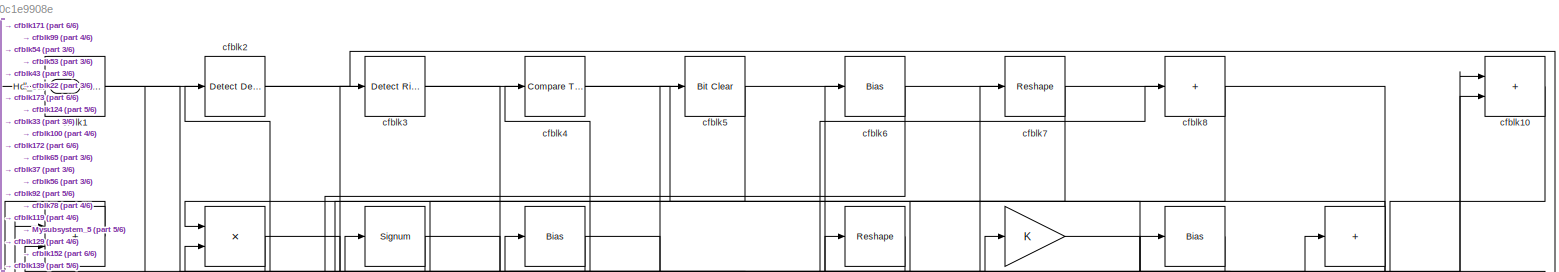
[diagram: root canvas - part 1/6, full width, top band]
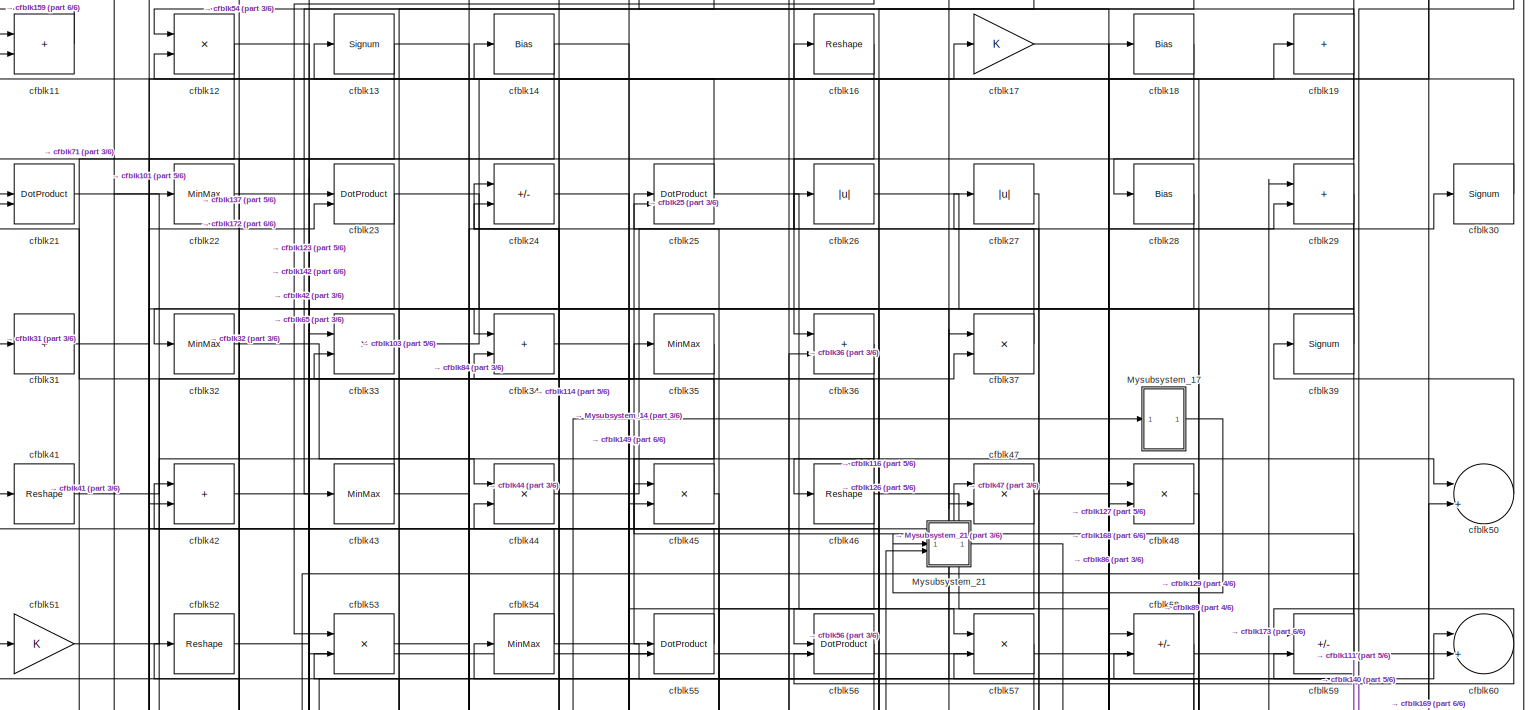
[diagram: root canvas - part 2/6, full width, top band]
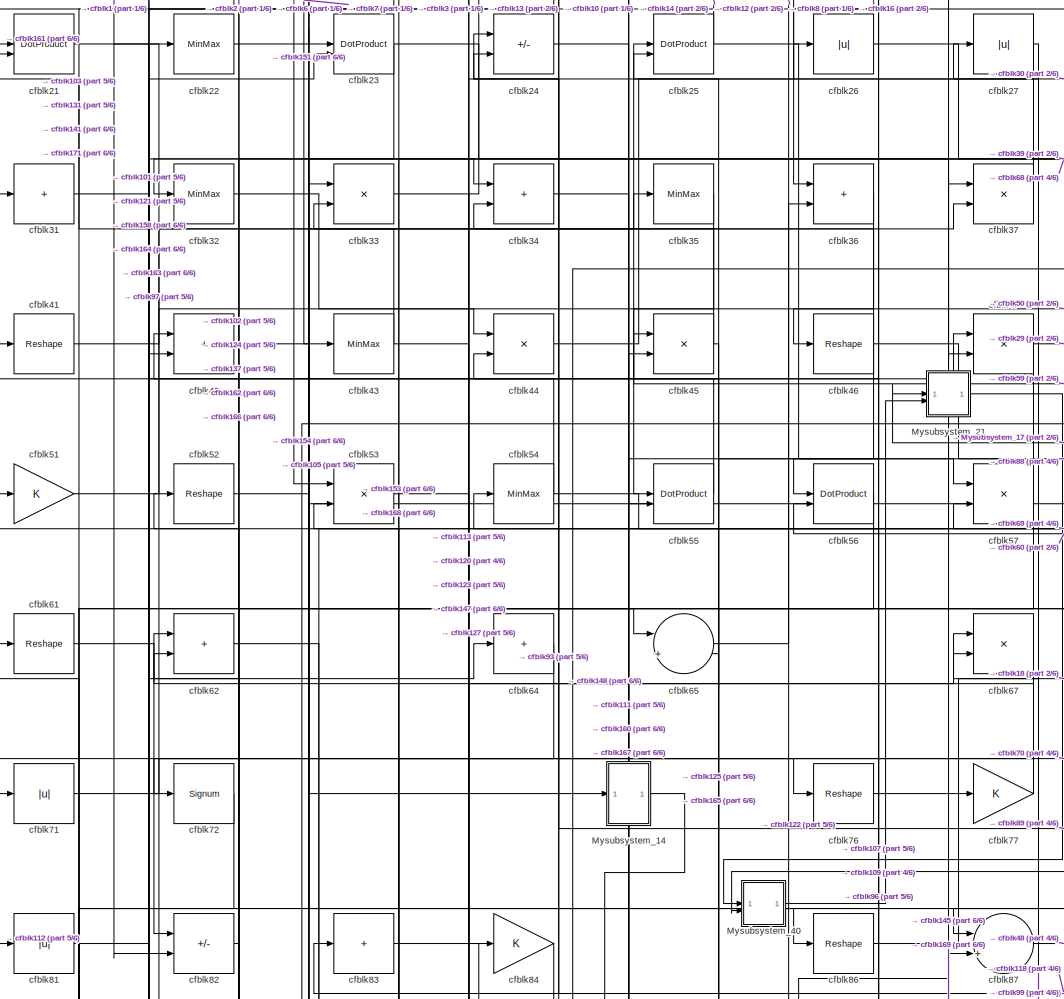
[diagram: root canvas - part 3/6, top center region]
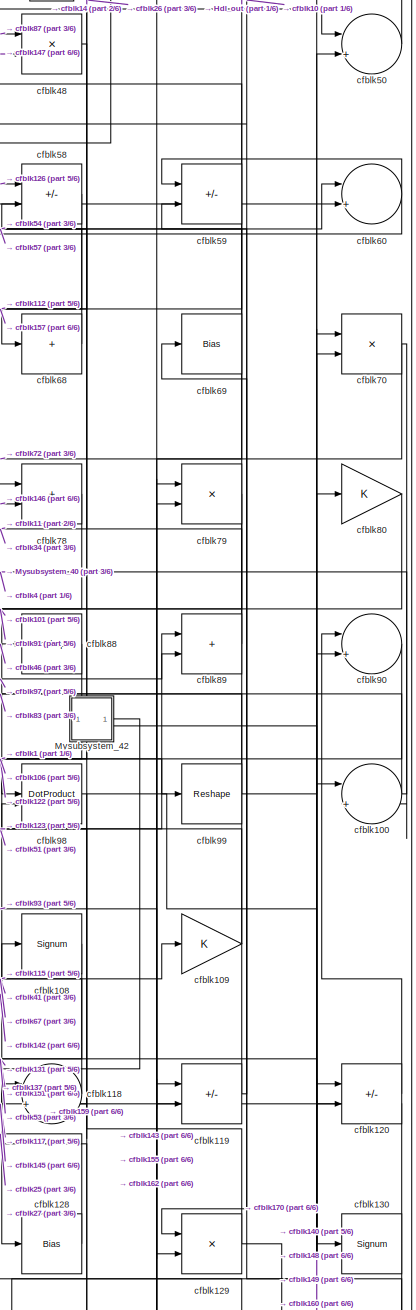
[diagram: root canvas - part 4/6, middle right region]
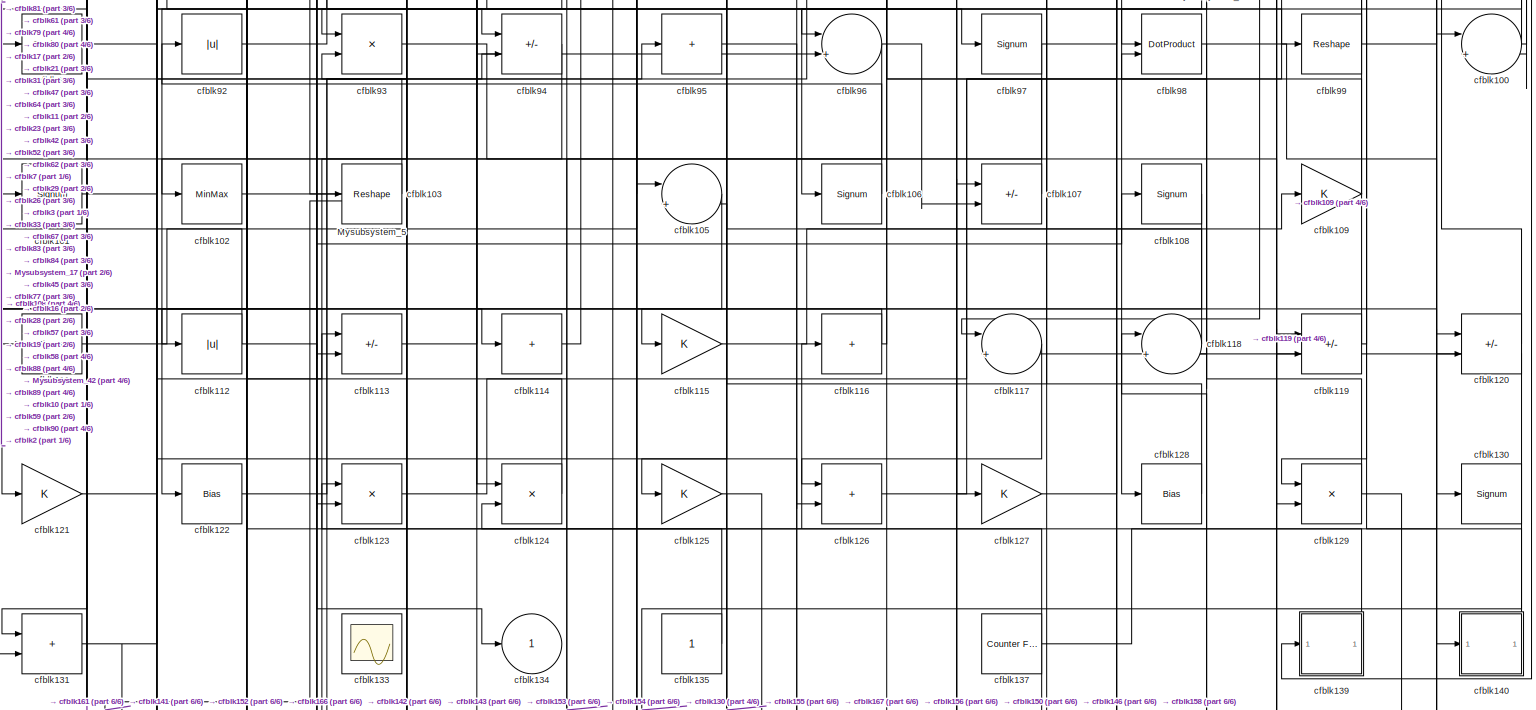
[diagram: root canvas - part 5/6, full width, middle band]
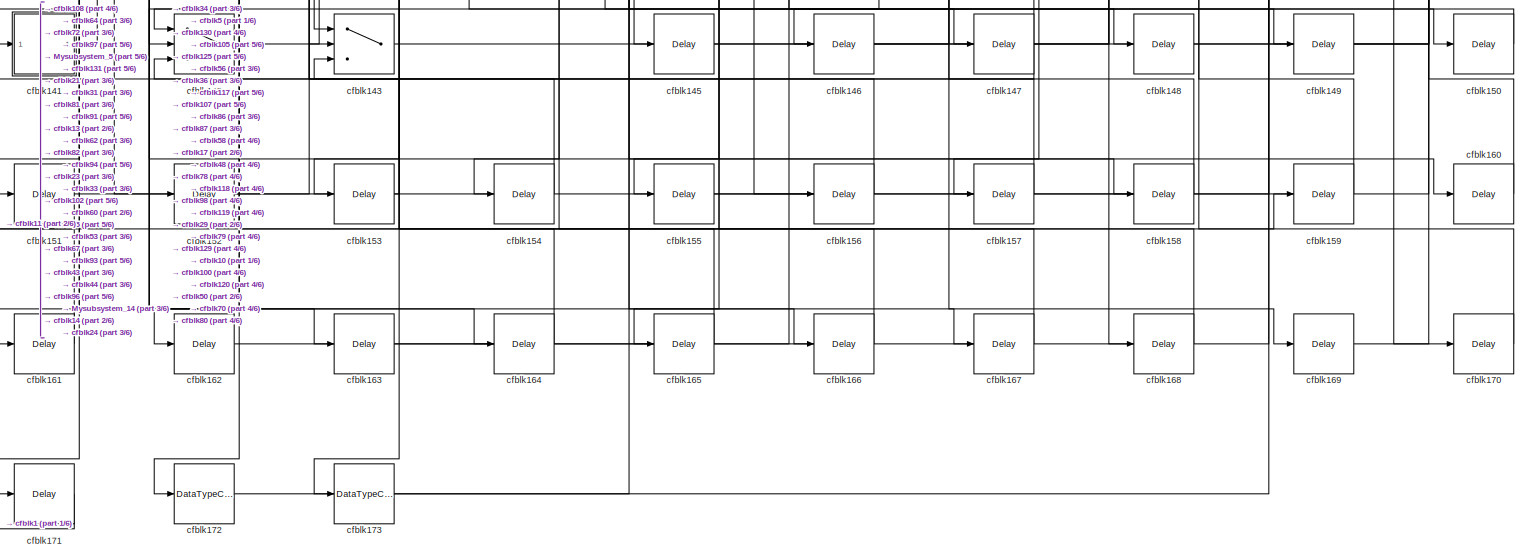
[diagram: root canvas - part 6/6, full width, bottom band]
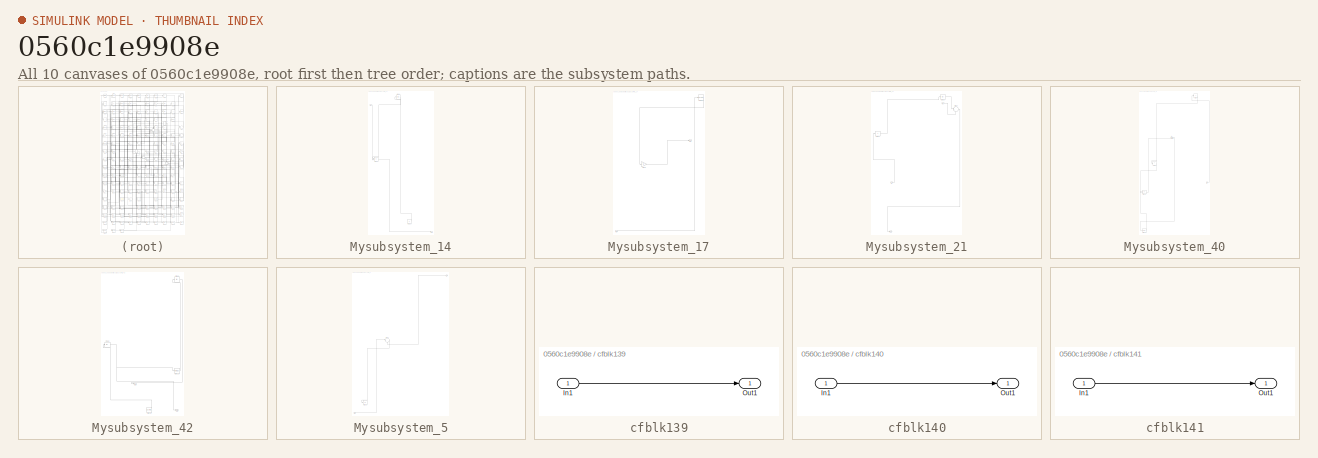
[diagram: thumbnail index - all 10 canvases of the model, root first then tree order]
MODEL slx_0560c1e9908e
KIND model
CONFIG AbsTol = auto
CONFIG EnableMultiTasking = off
CONFIG FixedStep = auto
CONFIG MaxStep = auto
CONFIG MinStep = auto
CONFIG RelTol = 1e-3
CONFIG SampleTimeConstraint = Unconstrained
CONFIG SolverName = VariableStepAuto
CONFIG StartTime = 0.0
CONFIG StopTime = 10.0
BLOCK [Outport] Hdl_out
  OutDataTypeStr = uint8
  Port = 2
BLOCK [SubSystem] Mysubsystem_14
  RTWFcnName = Mysubsystem_14
  RTWFcnNameOpts = User specified
  RTWFileNameOpts = Use function name
  RTWSystemCode = Reusable function
  TreatAsAtomicUnit = on
BLOCK [Inport] Mysubsystem_14/In1
BLOCK [Outport] Mysubsystem_14/Out1
BLOCK [Constant] Mysubsystem_14/cfblk136
  SampleTime = -1
BLOCK [Bias] Mysubsystem_14/cfblk15
  Bias = 0.0
  SaturateOnIntegerOverflow = off
BLOCK [Product] Mysubsystem_14/cfblk73
  Inputs = */
  RndMeth = Zero
  SaturateOnIntegerOverflow = on
BLOCK [SubSystem] Mysubsystem_17
  RTWFcnName = Mysubsystem_17
  RTWFcnNameOpts = User specified
  RTWFileNameOpts = Use function name
  RTWSystemCode = Reusable function
  TreatAsAtomicUnit = on
BLOCK [Inport] Mysubsystem_17/In1
BLOCK [Outport] Mysubsystem_17/Out1
BLOCK [Reshape] Mysubsystem_17/cfblk20
BLOCK [Gain] Mysubsystem_17/cfblk66
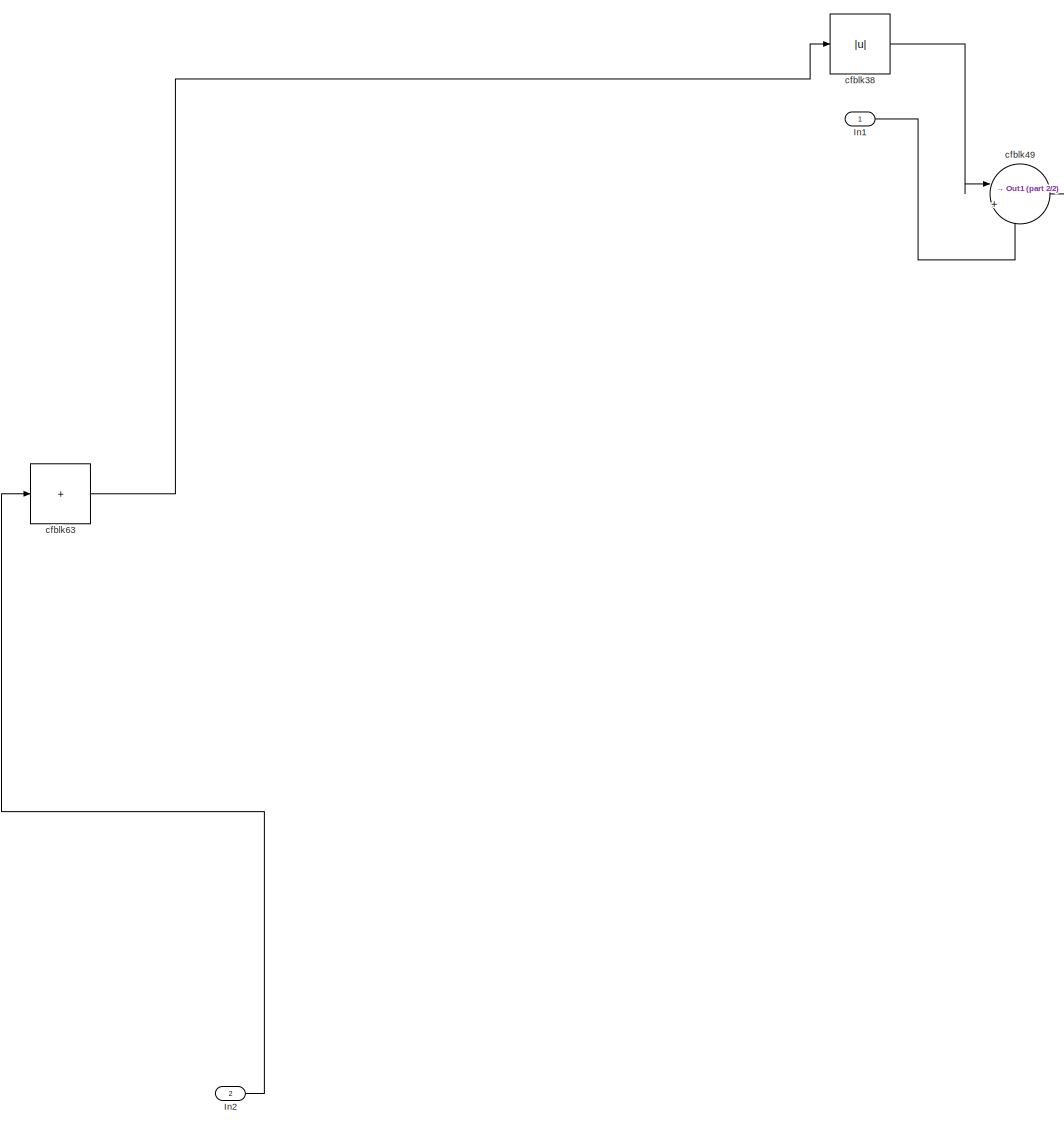
[diagram: Mysubsystem_21 - part 1/2, full width, middle band]
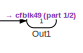
[diagram: Mysubsystem_21 - part 2/2, bottom left region]
BLOCK [SubSystem] Mysubsystem_21
  RTWFcnName = Mysubsystem_21
  RTWFcnNameOpts = User specified
  RTWFileNameOpts = Use function name
  RTWSystemCode = Reusable function
  TreatAsAtomicUnit = on
BLOCK [Inport] Mysubsystem_21/In1
BLOCK [Inport] Mysubsystem_21/In2
  Port = 2
BLOCK [Outport] Mysubsystem_21/Out1
BLOCK [Abs] Mysubsystem_21/cfblk38
  SaturateOnIntegerOverflow = off
BLOCK [Sum] Mysubsystem_21/cfblk49
  Inputs = |++
BLOCK [Sum] Mysubsystem_21/cfblk63
  IconShape = rectangular
  Inputs = +
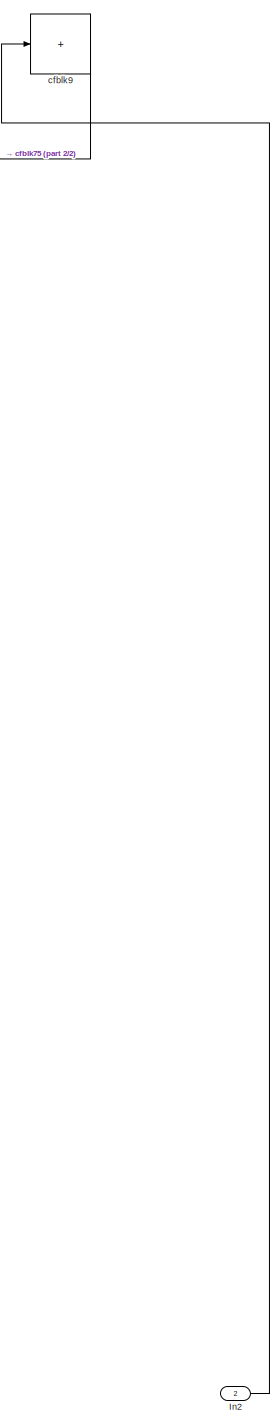
[diagram: Mysubsystem_40 - part 1/2, top right region]
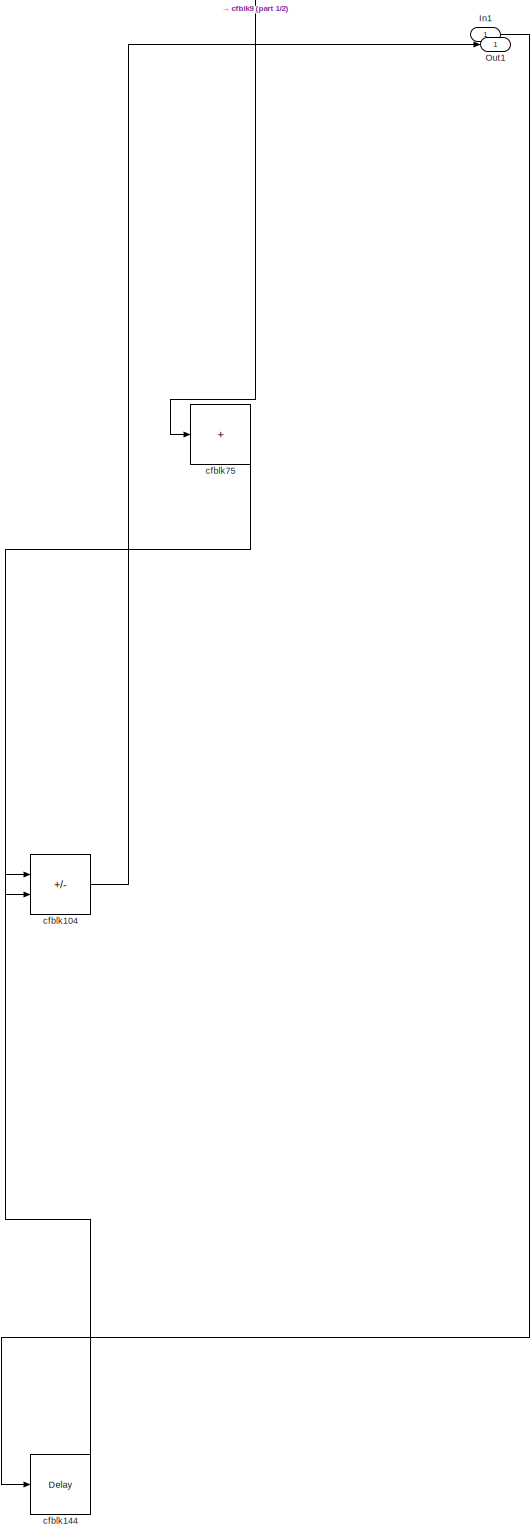
[diagram: Mysubsystem_40 - part 2/2, middle left region]
BLOCK [SubSystem] Mysubsystem_40
  RTWFcnName = Mysubsystem_40
  RTWFcnNameOpts = User specified
  RTWFileNameOpts = Use function name
  RTWSystemCode = Reusable function
  TreatAsAtomicUnit = on
BLOCK [Inport] Mysubsystem_40/In1
BLOCK [Inport] Mysubsystem_40/In2
  Port = 2
BLOCK [Outport] Mysubsystem_40/Out1
BLOCK [Sum] Mysubsystem_40/cfblk104
  IconShape = rectangular
  Inputs = +-
BLOCK [Delay] Mysubsystem_40/cfblk144
  InputPortMap = u0
  SampleTime = 1
BLOCK [Sum] Mysubsystem_40/cfblk75
  IconShape = rectangular
  Inputs = +
BLOCK [Sum] Mysubsystem_40/cfblk9
  IconShape = rectangular
  Inputs = +
BLOCK [SubSystem] Mysubsystem_42
  RTWFcnName = Mysubsystem_42
  RTWFcnNameOpts = User specified
  RTWFileNameOpts = Use function name
  RTWSystemCode = Reusable function
  TreatAsAtomicUnit = on
BLOCK [Outport] Mysubsystem_42/Out1
BLOCK [Outport] Mysubsystem_42/Out2
  Port = 2
BLOCK [MinMax] Mysubsystem_42/cfblk110
BLOCK [Reference] Mysubsystem_42/cfblk138  REF=hdlsllib/Sources/Counter
Limited
  SourceBlock = hdlsllib/Sources/Counter\nLimited
  SourceType = Counter Limited
BLOCK [Abs] Mysubsystem_42/cfblk40
  SaturateOnIntegerOverflow = off
BLOCK [Abs] Mysubsystem_42/cfblk85
  SaturateOnIntegerOverflow = off
BLOCK [SubSystem] Mysubsystem_5
  RTWFcnName = Mysubsystem_5
  RTWFcnNameOpts = User specified
  RTWFileNameOpts = Use function name
  RTWSystemCode = Reusable function
  TreatAsAtomicUnit = on
BLOCK [Inport] Mysubsystem_5/In1
BLOCK [Inport] Mysubsystem_5/In2
  Port = 2
BLOCK [Display] Mysubsystem_5/cfblk132
  Decimation = 1
BLOCK [Sum] Mysubsystem_5/cfblk74
  Inputs = |++
BLOCK [Reference] cfblk1  REF=hdlsllib/Logic and Bit
Operations/Detect Fall
Nonpositive
  SourceBlock = hdlsllib/Logic and Bit\nOperations/Detect Fall\nNonpositive
  SourceType = Detect Fall Nonpositive
BLOCK [Sum] cfblk10
  IconShape = rectangular
  OutDataTypeStr = uint8
BLOCK [Sum] cfblk100
  Inputs = |++
  OutDataTypeStr = uint8
BLOCK [Signum] cfblk101
BLOCK [MinMax] cfblk102
  OutDataTypeStr = uint8
BLOCK [Reshape] cfblk103
BLOCK [Sum] cfblk105
  Inputs = |++
  OutDataTypeStr = uint8
BLOCK [Signum] cfblk106
BLOCK [Sum] cfblk107
  IconShape = rectangular
  Inputs = +-
  OutDataTypeStr = uint8
BLOCK [Signum] cfblk108
BLOCK [Gain] cfblk109
  OutDataTypeStr = uint8
BLOCK [Sum] cfblk11
  IconShape = rectangular
  OutDataTypeStr = uint8
BLOCK [Signum] cfblk111
BLOCK [Abs] cfblk112
  OutDataTypeStr = uint8
  SaturateOnIntegerOverflow = off
BLOCK [Sum] cfblk113
  IconShape = rectangular
  Inputs = +-
  OutDataTypeStr = uint8
BLOCK [Sum] cfblk114
  IconShape = rectangular
  Inputs = +
  OutDataTypeStr = uint8
BLOCK [Gain] cfblk115
  OutDataTypeStr = uint8
BLOCK [Sum] cfblk116
  IconShape = rectangular
  Inputs = +
  OutDataTypeStr = uint8
BLOCK [Sum] cfblk117
  Inputs = |++
  OutDataTypeStr = uint8
BLOCK [Sum] cfblk118
  Inputs = |++
  OutDataTypeStr = uint8
BLOCK [Sum] cfblk119
  IconShape = rectangular
  Inputs = +-
  OutDataTypeStr = uint8
BLOCK [Product] cfblk12
  Inputs = */
  OutDataTypeStr = uint8
  RndMeth = Zero
  SaturateOnIntegerOverflow = on
BLOCK [Sum] cfblk120
  IconShape = rectangular
  Inputs = +-
  OutDataTypeStr = uint8
BLOCK [Gain] cfblk121
  OutDataTypeStr = uint8
BLOCK [Bias] cfblk122
  Bias = 0.0
  SaturateOnIntegerOverflow = off
BLOCK [Product] cfblk123
  Inputs = */
  OutDataTypeStr = uint8
  RndMeth = Zero
  SaturateOnIntegerOverflow = on
BLOCK [Product] cfblk124
  Inputs = */
  OutDataTypeStr = uint8
  RndMeth = Zero
  SaturateOnIntegerOverflow = on
BLOCK [Gain] cfblk125
  OutDataTypeStr = uint8
BLOCK [Sum] cfblk126
  IconShape = rectangular
  OutDataTypeStr = uint8
BLOCK [Gain] cfblk127
  OutDataTypeStr = uint8
BLOCK [Bias] cfblk128
  Bias = 0.0
  SaturateOnIntegerOverflow = off
BLOCK [Product] cfblk129
  Inputs = */
  OutDataTypeStr = uint8
  RndMeth = Zero
  SaturateOnIntegerOverflow = on
BLOCK [Signum] cfblk13
BLOCK [Signum] cfblk130
BLOCK [Sum] cfblk131
  IconShape = rectangular
  OutDataTypeStr = uint8
BLOCK [Scope] cfblk133
  Floating = on
  NumInputPorts = 1
  ScopeSpecificationString = Simulink.scopes.TimeScopeBlockCfg('CurrentConfiguration', extmgr.ConfigurationSet(extmgr.Configuration('Core','General UI',true,'FigureColor',[0.156862745098039 0.156862745098039 0.156862745098039]),extmgr.Configuration('Core','Source UI',true),extmgr.Configuration('Sources','WiredSimulink',true,'DataLoggingVariableName','ScopeData1','DataLoggingSaveFormat','StructureWithTime','DataLoggingLimitDat...<+2713ch>
BLOCK [Outport] cfblk134
  OutDataTypeStr = uint8
  VectorParamsAs1DForOutWhenUnconnected = off
BLOCK [Constant] cfblk135
  OutDataTypeStr = uint8
  SampleTime = -1
BLOCK [Reference] cfblk137  REF=hdlsllib/Sources/Counter
Free-Running
  SourceBlock = hdlsllib/Sources/Counter\nFree-Running
  SourceType = Counter Free-Running
BLOCK [SubSystem] cfblk139
  LibrarySourceBlock = hdlsllib/Ports &\nSubsystems/Subsystem
BLOCK [Inport] cfblk139/In1
BLOCK [Outport] cfblk139/Out1
BLOCK [Bias] cfblk14
  Bias = 0.0
  SaturateOnIntegerOverflow = off
BLOCK [SubSystem] cfblk140
  LibrarySourceBlock = hdlsllib/Ports &\nSubsystems/Subsystem
BLOCK [Inport] cfblk140/In1
BLOCK [Outport] cfblk140/Out1
BLOCK [SubSystem] cfblk141
  LibrarySourceBlock = hdlsllib/Ports &\nSubsystems/Subsystem
BLOCK [Inport] cfblk141/In1
BLOCK [Outport] cfblk141/Out1
BLOCK [Switch] cfblk142
  InputSameDT = off
  OutDataTypeStr = uint8
  SaturateOnIntegerOverflow = off
BLOCK [Switch] cfblk143
  InputSameDT = off
  OutDataTypeStr = uint8
  SaturateOnIntegerOverflow = off
BLOCK [Delay] cfblk145
  InputPortMap = u0
  SampleTime = 1
BLOCK [Delay] cfblk146
  InputPortMap = u0
  SampleTime = 1
BLOCK [Delay] cfblk147
  InputPortMap = u0
  SampleTime = 1
BLOCK [Delay] cfblk148
  InputPortMap = u0
  SampleTime = 1
BLOCK [Delay] cfblk149
  InputPortMap = u0
  SampleTime = 1
BLOCK [Delay] cfblk150
  InputPortMap = u0
  SampleTime = 1
BLOCK [Delay] cfblk151
  InputPortMap = u0
  SampleTime = 1
BLOCK [Delay] cfblk152
  InputPortMap = u0
  SampleTime = 1
BLOCK [Delay] cfblk153
  InputPortMap = u0
  SampleTime = 1
BLOCK [Delay] cfblk154
  InputPortMap = u0
  SampleTime = 1
BLOCK [Delay] cfblk155
  InputPortMap = u0
  SampleTime = 1
BLOCK [Delay] cfblk156
  InputPortMap = u0
  SampleTime = 1
BLOCK [Delay] cfblk157
  InputPortMap = u0
  SampleTime = 1
BLOCK [Delay] cfblk158
  InputPortMap = u0
  SampleTime = 1
BLOCK [Delay] cfblk159
  InputPortMap = u0
  SampleTime = 1
BLOCK [Reshape] cfblk16
BLOCK [Delay] cfblk160
  InputPortMap = u0
  SampleTime = 1
BLOCK [Delay] cfblk161
  InputPortMap = u0
  SampleTime = 1
BLOCK [Delay] cfblk162
  InputPortMap = u0
  SampleTime = 1
BLOCK [Delay] cfblk163
  InputPortMap = u0
  SampleTime = 1
BLOCK [Delay] cfblk164
  InputPortMap = u0
  SampleTime = 1
BLOCK [Delay] cfblk165
  InputPortMap = u0
  SampleTime = 1
BLOCK [Delay] cfblk166
  InputPortMap = u0
  SampleTime = 1
BLOCK [Delay] cfblk167
  InputPortMap = u0
  SampleTime = 1
BLOCK [Delay] cfblk168
  InputPortMap = u0
  SampleTime = 1
BLOCK [Delay] cfblk169
  InputPortMap = u0
  SampleTime = 1
BLOCK [Gain] cfblk17
  OutDataTypeStr = uint8
BLOCK [Delay] cfblk170
  InputPortMap = u0
  SampleTime = 1
BLOCK [Delay] cfblk171
  InputPortMap = u0
  SampleTime = 1
BLOCK [DataTypeConversion] cfblk172
  OutDataTypeStr = uint8
  RndMeth = Floor
  SaturateOnIntegerOverflow = off
BLOCK [DataTypeConversion] cfblk173
  OutDataTypeStr = uint8
  RndMeth = Floor
  SaturateOnIntegerOverflow = off
BLOCK [Bias] cfblk18
  Bias = 0.0
  SaturateOnIntegerOverflow = off
BLOCK [Sum] cfblk19
  IconShape = rectangular
  Inputs = +
  OutDataTypeStr = uint8
BLOCK [Reference] cfblk2  REF=simulink/Logic and Bit
Operations/Detect
Decrease
  LibrarySourceBlock = hdlsllib/Logic and Bit\nOperations/Detect\nDecrease
  SourceBlock = simulink/Logic and Bit\nOperations/Detect\nDecrease
  SourceType = Detect Decrease
BLOCK [DotProduct] cfblk21
  OutDataTypeStr = uint8
BLOCK [MinMax] cfblk22
  OutDataTypeStr = uint8
BLOCK [DotProduct] cfblk23
  OutDataTypeStr = uint8
BLOCK [Sum] cfblk24
  IconShape = rectangular
  Inputs = +-
  OutDataTypeStr = uint8
BLOCK [DotProduct] cfblk25
  OutDataTypeStr = uint8
BLOCK [Abs] cfblk26
  OutDataTypeStr = uint8
  SaturateOnIntegerOverflow = off
BLOCK [Abs] cfblk27
  OutDataTypeStr = uint8
  SaturateOnIntegerOverflow = off
BLOCK [Bias] cfblk28
  Bias = 0.0
  SaturateOnIntegerOverflow = off
BLOCK [Sum] cfblk29
  IconShape = rectangular
  OutDataTypeStr = uint8
BLOCK [Reference] cfblk3  REF=hdlsllib/Logic and Bit
Operations/Detect Rise
Positive
  SourceBlock = hdlsllib/Logic and Bit\nOperations/Detect Rise\nPositive
  SourceType = Detect Rise Positive
BLOCK [Signum] cfblk30
BLOCK [Sum] cfblk31
  IconShape = rectangular
  Inputs = +
  OutDataTypeStr = uint8
BLOCK [MinMax] cfblk32
  OutDataTypeStr = uint8
BLOCK [Product] cfblk33
  Inputs = */
  OutDataTypeStr = uint8
  RndMeth = Zero
  SaturateOnIntegerOverflow = on
BLOCK [Sum] cfblk34
  IconShape = rectangular
  OutDataTypeStr = uint8
BLOCK [MinMax] cfblk35
  OutDataTypeStr = uint8
BLOCK [Sum] cfblk36
  IconShape = rectangular
  OutDataTypeStr = uint8
BLOCK [Product] cfblk37
  Inputs = */
  OutDataTypeStr = uint8
  RndMeth = Zero
  SaturateOnIntegerOverflow = on
BLOCK [Signum] cfblk39
BLOCK [Reference] cfblk4  REF=hdlsllib/Logic and Bit
Operations/Compare
To Zero
  SourceBlock = hdlsllib/Logic and Bit\nOperations/Compare\nTo Zero
  SourceType = Compare To Zero
BLOCK [Reshape] cfblk41
BLOCK [Sum] cfblk42
  IconShape = rectangular
  OutDataTypeStr = uint8
BLOCK [MinMax] cfblk43
  OutDataTypeStr = uint8
BLOCK [Product] cfblk44
  Inputs = */
  OutDataTypeStr = uint8
  RndMeth = Zero
  SaturateOnIntegerOverflow = on
BLOCK [Product] cfblk45
  Inputs = */
  OutDataTypeStr = uint8
  RndMeth = Zero
  SaturateOnIntegerOverflow = on
BLOCK [Reshape] cfblk46
BLOCK [Product] cfblk47
  Inputs = */
  OutDataTypeStr = uint8
  RndMeth = Zero
  SaturateOnIntegerOverflow = on
BLOCK [Product] cfblk48
  Inputs = */
  OutDataTypeStr = uint8
  RndMeth = Zero
  SaturateOnIntegerOverflow = on
BLOCK [Reference] cfblk5  REF=simulink/Logic and Bit
Operations/Bit Clear
  LibrarySourceBlock = hdlsllib/Logic and Bit\nOperations/Bit Clear
  SourceBlock = simulink/Logic and Bit\nOperations/Bit Clear
  SourceType = Bit Clear
BLOCK [Sum] cfblk50
  Inputs = |++
  OutDataTypeStr = uint8
BLOCK [Gain] cfblk51
  OutDataTypeStr = uint8
BLOCK [Reshape] cfblk52
BLOCK [Product] cfblk53
  Inputs = */
  OutDataTypeStr = uint8
  RndMeth = Zero
  SaturateOnIntegerOverflow = on
BLOCK [MinMax] cfblk54
  OutDataTypeStr = uint8
BLOCK [DotProduct] cfblk55
  OutDataTypeStr = uint8
BLOCK [DotProduct] cfblk56
  OutDataTypeStr = uint8
BLOCK [Product] cfblk57
  Inputs = */
  OutDataTypeStr = uint8
  RndMeth = Zero
  SaturateOnIntegerOverflow = on
BLOCK [Sum] cfblk58
  IconShape = rectangular
  Inputs = +-
  OutDataTypeStr = uint8
BLOCK [Sum] cfblk59
  IconShape = rectangular
  Inputs = +-
  OutDataTypeStr = uint8
BLOCK [Bias] cfblk6
  Bias = 0.0
  SaturateOnIntegerOverflow = off
BLOCK [Sum] cfblk60
  Inputs = |++
  OutDataTypeStr = uint8
BLOCK [Reshape] cfblk61
BLOCK [Sum] cfblk62
  IconShape = rectangular
  OutDataTypeStr = uint8
BLOCK [Sum] cfblk64
  IconShape = rectangular
  Inputs = +
  OutDataTypeStr = uint8
BLOCK [Sum] cfblk65
  Inputs = |++
  OutDataTypeStr = uint8
BLOCK [Product] cfblk67
  Inputs = */
  OutDataTypeStr = uint8
  RndMeth = Zero
  SaturateOnIntegerOverflow = on
BLOCK [Sum] cfblk68
  IconShape = rectangular
  Inputs = +
  OutDataTypeStr = uint8
BLOCK [Bias] cfblk69
  Bias = 0.0
  SaturateOnIntegerOverflow = off
BLOCK [Reshape] cfblk7
BLOCK [Product] cfblk70
  Inputs = */
  OutDataTypeStr = uint8
  RndMeth = Zero
  SaturateOnIntegerOverflow = on
BLOCK [Abs] cfblk71
  OutDataTypeStr = uint8
  SaturateOnIntegerOverflow = off
BLOCK [Signum] cfblk72
BLOCK [Reshape] cfblk76
BLOCK [Gain] cfblk77
  OutDataTypeStr = uint8
BLOCK [Sum] cfblk78
  IconShape = rectangular
  OutDataTypeStr = uint8
BLOCK [Product] cfblk79
  Inputs = */
  OutDataTypeStr = uint8
  RndMeth = Zero
  SaturateOnIntegerOverflow = on
BLOCK [Sum] cfblk8
  IconShape = rectangular
  Inputs = +
  OutDataTypeStr = uint8
BLOCK [Gain] cfblk80
  OutDataTypeStr = uint8
BLOCK [Abs] cfblk81
  OutDataTypeStr = uint8
  SaturateOnIntegerOverflow = off
BLOCK [Sum] cfblk82
  IconShape = rectangular
  Inputs = +-
  OutDataTypeStr = uint8
BLOCK [Sum] cfblk83
  IconShape = rectangular
  Inputs = +
  OutDataTypeStr = uint8
BLOCK [Gain] cfblk84
  OutDataTypeStr = uint8
BLOCK [Reshape] cfblk86
BLOCK [Sum] cfblk87
  Inputs = |++
  OutDataTypeStr = uint8
BLOCK [Reshape] cfblk88
BLOCK [Sum] cfblk89
  IconShape = rectangular
  OutDataTypeStr = uint8
BLOCK [Sum] cfblk90
  Inputs = |++
  OutDataTypeStr = uint8
BLOCK [Reshape] cfblk91
BLOCK [Abs] cfblk92
  OutDataTypeStr = uint8
  SaturateOnIntegerOverflow = off
BLOCK [Product] cfblk93
  Inputs = */
  OutDataTypeStr = uint8
  RndMeth = Zero
  SaturateOnIntegerOverflow = on
BLOCK [Sum] cfblk94
  IconShape = rectangular
  Inputs = +-
  OutDataTypeStr = uint8
BLOCK [Sum] cfblk95
  IconShape = rectangular
  Inputs = +
  OutDataTypeStr = uint8
BLOCK [Sum] cfblk96
  Inputs = |++
  OutDataTypeStr = uint8
BLOCK [Signum] cfblk97
BLOCK [DotProduct] cfblk98
  OutDataTypeStr = uint8
BLOCK [Reshape] cfblk99
LINE Mysubsystem_14/In1:1 -> Mysubsystem_14/cfblk73:2
LINE Mysubsystem_14/cfblk136:1 -> Mysubsystem_14/cfblk15:1
LINE Mysubsystem_14/cfblk15:1 -> Mysubsystem_14/cfblk73:1
LINE Mysubsystem_14/cfblk73:1 -> Mysubsystem_14/Out1:1
LINE Mysubsystem_14:1 -> cfblk148:1
LINE Mysubsystem_17/In1:1 -> Mysubsystem_17/cfblk20:1
LINE Mysubsystem_17/cfblk20:1 -> Mysubsystem_17/cfblk66:1
LINE Mysubsystem_17/cfblk66:1 -> Mysubsystem_17/Out1:1
LINE Mysubsystem_17:1 -> Mysubsystem_21:1
LINE Mysubsystem_21/In1:1 -> Mysubsystem_21/cfblk49:2
LINE Mysubsystem_21/In2:1 -> Mysubsystem_21/cfblk63:1
LINE Mysubsystem_21/cfblk38:1 -> Mysubsystem_21/cfblk49:1
LINE Mysubsystem_21/cfblk49:1 -> Mysubsystem_21/Out1:1
LINE Mysubsystem_21/cfblk63:1 -> Mysubsystem_21/cfblk38:1
LINE Mysubsystem_21:1 -> Mysubsystem_40:1
LINE Mysubsystem_40/In1:1 -> Mysubsystem_40/cfblk144:1
LINE Mysubsystem_40/In2:1 -> Mysubsystem_40/cfblk9:1
LINE Mysubsystem_40/cfblk104:1 -> Mysubsystem_40/Out1:1
LINE Mysubsystem_40/cfblk144:1 -> Mysubsystem_40/cfblk104:1
LINE Mysubsystem_40/cfblk75:1 -> Mysubsystem_40/cfblk104:2
LINE Mysubsystem_40/cfblk9:1 -> Mysubsystem_40/cfblk75:1
LINE Mysubsystem_40:1 -> Mysubsystem_21:2
LINE Mysubsystem_42/cfblk110:1 -> Mysubsystem_42/cfblk40:1
LINE Mysubsystem_42/cfblk138:1 -> Mysubsystem_42/cfblk85:1
LINE Mysubsystem_42/cfblk40:1 -> Mysubsystem_42/Out1:1
NET Mysubsystem_42/cfblk85:1 -> Mysubsystem_42/Out2:1, Mysubsystem_42/cfblk110:1
LINE Mysubsystem_42:1 -> cfblk117:1
LINE Mysubsystem_42:2 -> cfblk140:1
LINE Mysubsystem_5/In1:1 -> Mysubsystem_5/cfblk74:2
LINE Mysubsystem_5/In2:1 -> Mysubsystem_5/cfblk74:1
LINE Mysubsystem_5/cfblk74:1 -> Mysubsystem_5/cfblk132:1
NET cfblk100:1 -> Mysubsystem_40:2, cfblk4:1
NET cfblk101:1 -> cfblk17:1, cfblk47:1, cfblk64:1
LINE cfblk102:1 -> cfblk143:1
LINE cfblk103:1 -> cfblk61:1
LINE cfblk105:1 -> cfblk121:1
LINE cfblk106:1 -> cfblk92:1
LINE cfblk107:1 -> cfblk45:1
NET cfblk108:1 -> cfblk131:2, cfblk151:1
LINE cfblk109:1 -> cfblk51:1
NET cfblk10:1 -> Mysubsystem_5:1, cfblk129:1
NET cfblk111:1 -> cfblk114:1, cfblk45:2
NET cfblk112:1 -> cfblk134:1, cfblk81:1
LINE cfblk113:1 -> cfblk67:1
LINE cfblk114:1 -> Mysubsystem_17:1
LINE cfblk115:1 -> cfblk109:1
NET cfblk116:1 -> cfblk115:1, cfblk16:1
LINE cfblk117:1 -> cfblk146:1
NET cfblk118:1 -> cfblk41:1, cfblk67:2
NET cfblk119:1 -> Hdl_out:1, cfblk69:1
LINE cfblk11:1 -> cfblk159:1
LINE cfblk120:1 -> cfblk90:1
NET cfblk121:1 -> cfblk23:2, cfblk94:2
LINE cfblk122:1 -> cfblk77:1
NET cfblk123:1 -> cfblk26:1, cfblk89:1
LINE cfblk124:1 -> cfblk52:1
NET cfblk125:1 -> cfblk155:1, cfblk156:1
LINE cfblk126:1 -> cfblk58:1
LINE cfblk127:1 -> cfblk19:1
NET cfblk128:1 -> cfblk25:2, cfblk27:1
NET cfblk129:1 -> cfblk14:1, cfblk170:1
NET cfblk12:1 -> cfblk31:1, cfblk65:1
NET cfblk130:1 -> cfblk117:2, cfblk145:1
NET cfblk131:1 -> cfblk113:1, cfblk152:1
LINE cfblk135:1 -> cfblk124:2
NET cfblk137:1 -> cfblk11:1, cfblk42:1, cfblk90:2
LINE cfblk139/In1:1 -> cfblk139/Out1:1
NET cfblk139:1 -> cfblk116:1, cfblk123:1
NET cfblk13:1 -> cfblk172:1, cfblk84:1
LINE cfblk140/In1:1 -> cfblk140/Out1:1
LINE cfblk140:1 -> cfblk59:2
LINE cfblk141/In1:1 -> cfblk141/Out1:1
LINE cfblk141:1 -> Mysubsystem_5:2
NET cfblk142:1 -> cfblk108:1, cfblk60:2, cfblk95:1
NET cfblk143:1 -> cfblk79:1, cfblk80:1
LINE cfblk145:1 -> cfblk87:2
LINE cfblk146:1 -> cfblk78:2
LINE cfblk147:1 -> cfblk48:2
LINE cfblk148:1 -> cfblk100:1
LINE cfblk149:1 -> cfblk70:2
NET cfblk14:1 -> Mysubsystem_14:1, cfblk149:1, cfblk42:2
LINE cfblk150:1 -> cfblk142:2
LINE cfblk151:1 -> cfblk23:1
LINE cfblk152:1 -> cfblk10:2
LINE cfblk153:1 -> cfblk93:2
LINE cfblk154:1 -> cfblk33:1
LINE cfblk155:1 -> cfblk79:2
LINE cfblk156:1 -> cfblk143:2
LINE cfblk157:1 -> cfblk142:3
LINE cfblk158:1 -> cfblk107:1
LINE cfblk159:1 -> cfblk98:2
LINE cfblk160:1 -> cfblk120:1
LINE cfblk161:1 -> cfblk21:1
LINE cfblk162:1 -> cfblk119:1
LINE cfblk163:1 -> cfblk36:2
LINE cfblk164:1 -> cfblk143:3
LINE cfblk165:1 -> cfblk44:2
LINE cfblk166:1 -> cfblk62:2
LINE cfblk167:1 -> cfblk105:2
LINE cfblk168:1 -> cfblk53:2
LINE cfblk169:1 -> cfblk50:2
LINE cfblk16:1 -> cfblk71:1
LINE cfblk170:1 -> cfblk118:1
LINE cfblk171:1 -> cfblk1:1
LINE cfblk172:1 -> cfblk5:1
LINE cfblk173:1 -> cfblk29:1
LINE cfblk17:1 -> cfblk168:1
LINE cfblk18:1 -> cfblk36:1
NET cfblk19:1 -> cfblk12:1, cfblk28:1
NET cfblk1:1 -> cfblk22:1, cfblk99:1
NET cfblk21:1 -> cfblk163:1, cfblk82:2, cfblk97:1
LINE cfblk22:1 -> cfblk3:1
NET cfblk23:1 -> cfblk102:1, cfblk47:2
LINE cfblk24:1 -> cfblk167:1
NET cfblk25:1 -> cfblk12:2, cfblk57:1
LINE cfblk26:1 -> cfblk68:1
LINE cfblk27:1 -> cfblk87:1
NET cfblk28:1 -> cfblk123:2, cfblk126:1
LINE cfblk29:1 -> cfblk103:1
LINE cfblk2:1 -> cfblk139:1
LINE cfblk30:1 -> cfblk13:1
NET cfblk31:1 -> cfblk113:2, cfblk164:1, cfblk34:1
LINE cfblk32:1 -> cfblk44:1
NET cfblk33:1 -> cfblk10:1, cfblk96:2
LINE cfblk34:1 -> cfblk160:1
LINE cfblk35:1 -> cfblk55:1
LINE cfblk36:1 -> cfblk46:1
LINE cfblk37:1 -> cfblk6:1
LINE cfblk39:1 -> cfblk32:1
LINE cfblk3:1 -> cfblk124:1
LINE cfblk41:1 -> cfblk50:1
LINE cfblk42:1 -> cfblk86:1
NET cfblk43:1 -> cfblk147:1, cfblk33:2
LINE cfblk44:1 -> cfblk30:1
NET cfblk45:1 -> cfblk125:1, cfblk21:2
NET cfblk46:1 -> cfblk24:2, cfblk65:2, cfblk88:1
NET cfblk47:1 -> cfblk29:2, cfblk55:2
LINE cfblk48:1 -> cfblk98:1
LINE cfblk4:1 -> cfblk78:1
LINE cfblk50:1 -> cfblk39:1
LINE cfblk51:1 -> cfblk37:2
LINE cfblk52:1 -> cfblk35:1
LINE cfblk53:1 -> cfblk120:2
NET cfblk54:1 -> cfblk2:1, cfblk60:1
LINE cfblk55:1 -> cfblk24:1
LINE cfblk56:1 -> cfblk165:1
NET cfblk57:1 -> cfblk131:1, cfblk96:1
NET cfblk58:1 -> cfblk112:1, cfblk157:1
NET cfblk59:1 -> cfblk111:1, cfblk25:1
LINE cfblk5:1 -> cfblk173:1
NET cfblk60:1 -> cfblk56:2, cfblk59:1
LINE cfblk61:1 -> cfblk82:1
LINE cfblk62:1 -> cfblk105:1
LINE cfblk64:1 -> cfblk141:1
LINE cfblk65:1 -> cfblk8:1
LINE cfblk67:1 -> cfblk153:1
LINE cfblk68:1 -> cfblk57:2
NET cfblk69:1 -> cfblk129:2, cfblk54:1
LINE cfblk6:1 -> cfblk53:1
NET cfblk70:1 -> cfblk100:2, cfblk72:1
LINE cfblk71:1 -> cfblk76:1
LINE cfblk72:1 -> cfblk171:1
LINE cfblk76:1 -> cfblk37:1
LINE cfblk77:1 -> cfblk62:1
LINE cfblk78:1 -> cfblk128:1
LINE cfblk79:1 -> cfblk91:1
LINE cfblk7:1 -> cfblk43:1
LINE cfblk80:1 -> cfblk101:1
LINE cfblk81:1 -> cfblk158:1
LINE cfblk82:1 -> cfblk162:1
LINE cfblk83:1 -> cfblk127:1
LINE cfblk84:1 -> cfblk93:1
NET cfblk86:1 -> cfblk169:1, cfblk18:1
LINE cfblk87:1 -> cfblk48:1
LINE cfblk88:1 -> cfblk122:1
NET cfblk89:1 -> cfblk11:2, cfblk34:2, cfblk58:2
LINE cfblk8:1 -> cfblk56:1
LINE cfblk90:1 -> cfblk106:1
NET cfblk91:1 -> cfblk126:2, cfblk166:1, cfblk94:1
LINE cfblk92:1 -> cfblk7:1
LINE cfblk93:1 -> cfblk119:2
LINE cfblk94:1 -> cfblk142:1
LINE cfblk95:1 -> cfblk150:1
NET cfblk96:1 -> cfblk107:2, cfblk154:1
NET cfblk97:1 -> cfblk161:1, cfblk89:2
NET cfblk98:1 -> cfblk118:2, cfblk130:1
NET cfblk99:1 -> cfblk70:1, cfblk83:1
note: NET lines group one-source signal fan-out (src -> all destinations, sorted); 1:1 wires keep LINE
